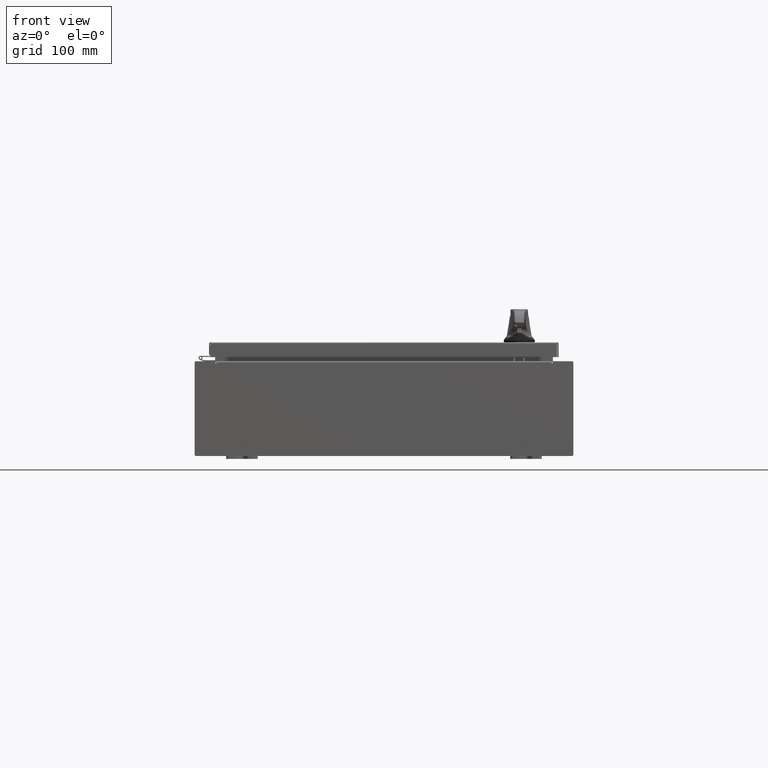
[diagram: clean part render]
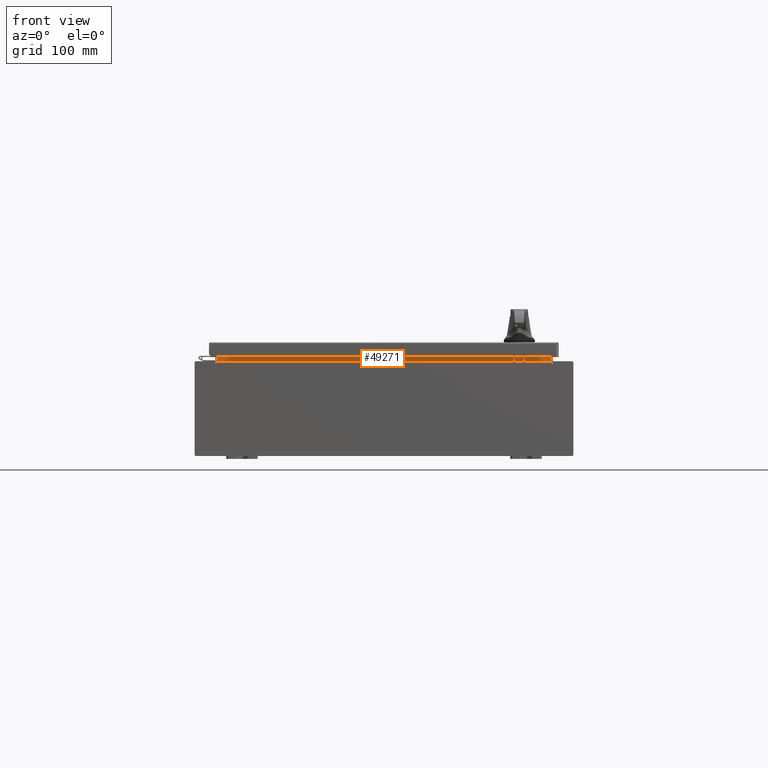
[diagram: same view with one face highlighted and labeled with its STEP entity id]
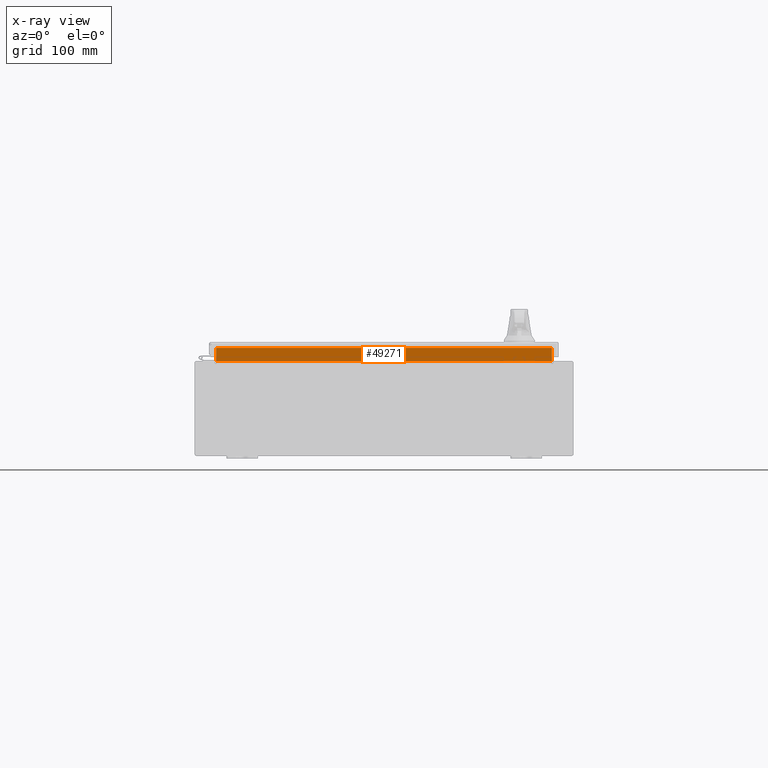
[diagram: x-ray of the same camera — body ghosted, the highlighted face saturated]
A machine part, front view. The second image highlights one B-rep face of the part: STEP entity #49271.
The next image is the same camera in x-ray: the body ghosted, the highlighted face saturated — about 0% of this face is hidden behind the body in this view.
In plain terms, the highlighted planar face has unit normal (0, -1, 0).
Its self-contained STEP definition (entity closure, byte-faithful):
#1064 = ORIENTED_EDGE ( 'NONE', *, *, #79333, .F. ) ;
#7726 = DIRECTION ( 'NONE',  ( -0.0000000000000000000, -0.0000000000000000000, 1.000000000000000000 ) ) ;
#22133 = CARTESIAN_POINT ( 'NONE',  ( -10.63720000000000200, -1.300299999999999800, 3.000000000000005300 ) ) ;
#23896 = ORIENTED_EDGE ( 'NONE', *, *, #89267, .F. ) ;
#26084 = VERTEX_POINT ( 'NONE', #43234 ) ;
#29220 = CARTESIAN_POINT ( 'NONE',  ( -10.63720000000000200, -1.300299999999999800, 3.013000000000005200 ) ) ;
#29653 = VERTEX_POINT ( 'NONE', #49757 ) ;
#34311 = ORIENTED_EDGE ( 'NONE', *, *, #56183, .F. ) ;
#36760 = CARTESIAN_POINT ( 'NONE',  ( 0.0000000000000000000, -1.300299999999999800, 0.0000000000000000000 ) ) ;
#39615 = CARTESIAN_POINT ( 'NONE',  ( 10.63720000000000400, -1.300299999999999800, 3.013000000000004800 ) ) ;
#41790 = CARTESIAN_POINT ( 'NONE',  ( 10.63720000000000200, -1.300300000000000200, 3.837600000000005000 ) ) ;
#43234 = CARTESIAN_POINT ( 'NONE',  ( -10.63720000000000400, -1.300299999999999800, 3.013000000000004800 ) ) ;
#45408 = AXIS2_PLACEMENT_3D ( 'NONE', #36760, #122166, #65507 ) ;
#49271 = ADVANCED_FACE ( 'NONE', ( #83732 ), #112729, .T. ) ;
#49757 = CARTESIAN_POINT ( 'NONE',  ( 10.63720000000000200, -1.300299999999999800, 3.837600000000005000 ) ) ;
#55455 = ORIENTED_EDGE ( 'NONE', *, *, #61951, .F. ) ;
#56138 = VERTEX_POINT ( 'NONE', #39615 ) ;
#56183 = EDGE_CURVE ( 'NONE', #29653, #121700, #81991, .T. ) ;
#57253 = DIRECTION ( 'NONE',  ( 1.000000000000000000, 0.0000000000000000000, -5.136404305013091600E-017 ) ) ;
#61951 = EDGE_CURVE ( 'NONE', #26084, #56138, #121396, .T. ) ;
#62767 = VECTOR ( 'NONE', #89088, 39.37007874015748100 ) ;
#65016 = CARTESIAN_POINT ( 'NONE',  ( 10.63720000000000200, -1.300299999999999800, 3.925300000000005300 ) ) ;
#65507 = DIRECTION ( 'NONE',  ( 0.0000000000000000000, -0.0000000000000000000, 1.000000000000000000 ) ) ;
#68777 = VECTOR ( 'NONE', #70166, 39.37007874015748100 ) ;
#70166 = DIRECTION ( 'NONE',  ( -0.0000000000000000000, -0.0000000000000000000, -1.000000000000000000 ) ) ;
#71170 = VECTOR ( 'NONE', #57253, 39.37007874015748100 ) ;
#79333 = EDGE_CURVE ( 'NONE', #56138, #29653, #116204, .T. ) ;
#81991 = LINE ( 'NONE', #41790, #62767 ) ;
#83732 = FACE_OUTER_BOUND ( 'NONE', #123410, .T. ) ;
#89088 = DIRECTION ( 'NONE',  ( -1.000000000000000000, -0.0000000000000000000, -0.0000000000000000000 ) ) ;
#89267 = EDGE_CURVE ( 'NONE', #121700, #26084, #99911, .T. ) ;
#91102 = VECTOR ( 'NONE', #7726, 39.37007874015748100 ) ;
#99911 = LINE ( 'NONE', #22133, #68777 ) ;
#112729 = PLANE ( 'NONE',  #45408 ) ;
#116204 = LINE ( 'NONE', #65016, #91102 ) ;
#116970 = CARTESIAN_POINT ( 'NONE',  ( -10.63720000000000200, -1.300300000000000200, 3.837600000000005000 ) ) ;
#121396 = LINE ( 'NONE', #29220, #71170 ) ;
#121700 = VERTEX_POINT ( 'NONE', #116970 ) ;
#122166 = DIRECTION ( 'NONE',  ( 0.0000000000000000000, 1.000000000000000000, 0.0000000000000000000 ) ) ;
#123410 = EDGE_LOOP ( 'NONE', ( #23896, #34311, #1064, #55455 ) ) ;